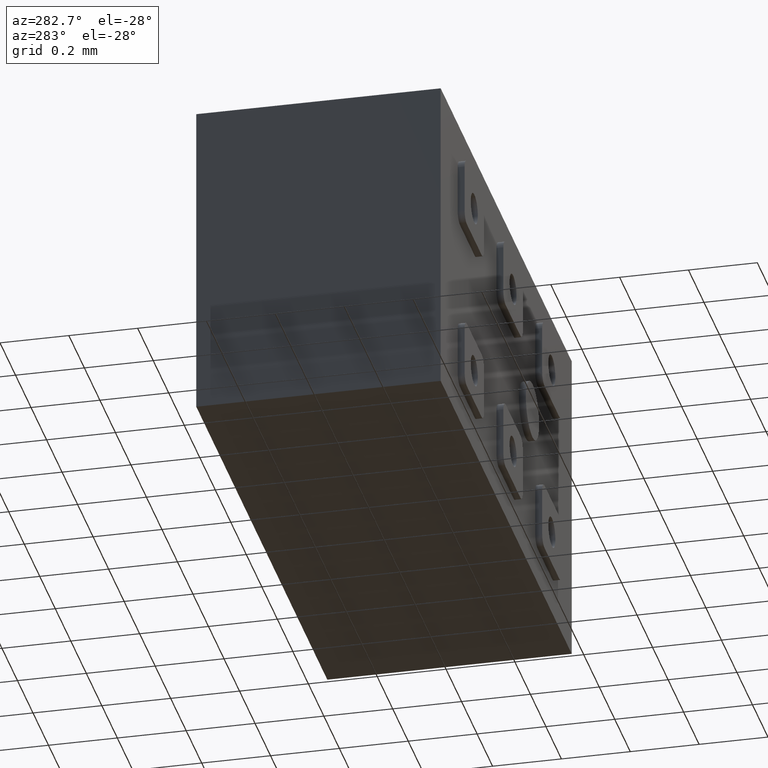
[diagram: clean part render]
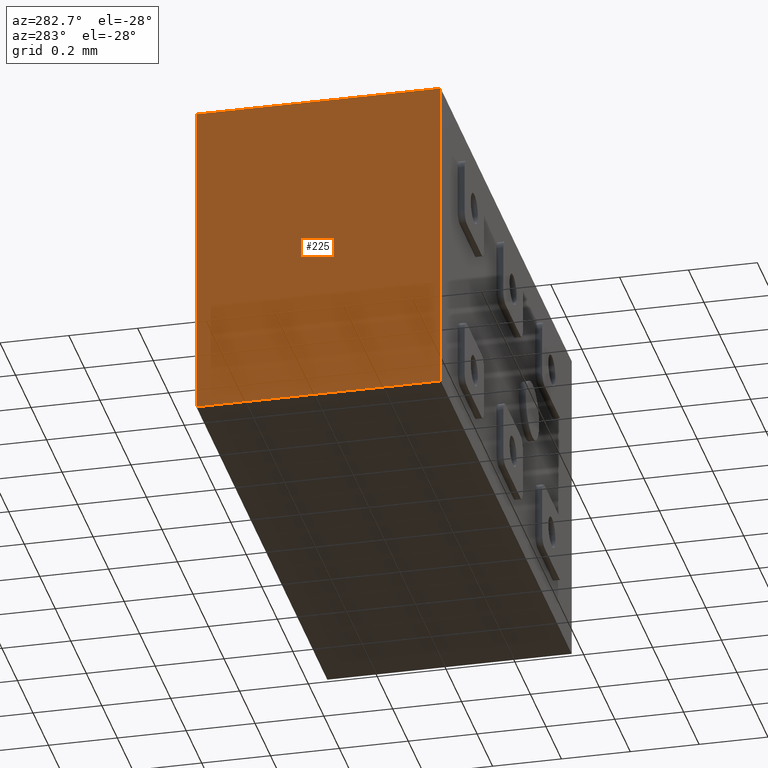
[diagram: same view with one face highlighted and labeled with its STEP entity id]
A machine part, auxiliary view. The second image highlights one B-rep face of the part: STEP entity #225.
In plain terms, the highlighted planar face has unit normal (1, -0, 0).
Its self-contained STEP definition (entity closure, byte-faithful):
#72 = CARTESIAN_POINT ( 'NONE',  ( -0.8445000000000000284, 0.3549999999999999822, -0.4694999999999999174 ) ) ;
#172 = DIRECTION ( 'NONE',  ( -0.000000000000000000, -0.000000000000000000, 1.000000000000000000 ) ) ;
#208 = EDGE_CURVE ( 'NONE', #542, #2104, #2473, .T. ) ;
#225 = ADVANCED_FACE ( 'NONE', ( #280 ), #2462, .F. ) ;
#280 = FACE_OUTER_BOUND ( 'NONE', #1033, .T. ) ;
#310 = VERTEX_POINT ( 'NONE', #1484 ) ;
#511 = ORIENTED_EDGE ( 'NONE', *, *, #911, .F. ) ;
#542 = VERTEX_POINT ( 'NONE', #1954 ) ;
#786 = AXIS2_PLACEMENT_3D ( 'NONE', #2017, #2422, #1874 ) ;
#797 = CARTESIAN_POINT ( 'NONE',  ( -0.8445000000000000284, -0.3549999999999999822, 0.4695000000000000284 ) ) ;
#911 = EDGE_CURVE ( 'NONE', #1313, #310, #1521, .T. ) ;
#954 = ORIENTED_EDGE ( 'NONE', *, *, #208, .T. ) ;
#1017 = ORIENTED_EDGE ( 'NONE', *, *, #2443, .T. ) ;
#1033 = EDGE_LOOP ( 'NONE', ( #954, #1138, #511, #1017 ) ) ;
#1119 = CARTESIAN_POINT ( 'NONE',  ( -0.8445000000000000284, -0.3549999999999999822, 0.4695000000000000284 ) ) ;
#1138 = ORIENTED_EDGE ( 'NONE', *, *, #1838, .F. ) ;
#1189 = CARTESIAN_POINT ( 'NONE',  ( -0.8445000000000000284, 0.3549999999999999822, 0.4695000000000000284 ) ) ;
#1313 = VERTEX_POINT ( 'NONE', #1344 ) ;
#1344 = CARTESIAN_POINT ( 'NONE',  ( -0.8445000000000000284, 0.3549999999999999822, -0.4694999999999999174 ) ) ;
#1432 = VECTOR ( 'NONE', #2559, 1000.000000000000000 ) ;
#1484 = CARTESIAN_POINT ( 'NONE',  ( -0.8445000000000000284, 0.3549999999999999822, 0.4695000000000000284 ) ) ;
#1497 = DIRECTION ( 'NONE',  ( -0.000000000000000000, -0.000000000000000000, 1.000000000000000000 ) ) ;
#1521 = LINE ( 'NONE', #1949, #1910 ) ;
#1645 = LINE ( 'NONE', #72, #2519 ) ;
#1805 = LINE ( 'NONE', #1189, #1432 ) ;
#1838 = EDGE_CURVE ( 'NONE', #310, #2104, #1805, .T. ) ;
#1874 = DIRECTION ( 'NONE',  ( 0.000000000000000000, 0.000000000000000000, -1.000000000000000000 ) ) ;
#1910 = VECTOR ( 'NONE', #172, 1000.000000000000000 ) ;
#1949 = CARTESIAN_POINT ( 'NONE',  ( -0.8445000000000000284, 0.3549999999999999822, 0.4695000000000000284 ) ) ;
#1954 = CARTESIAN_POINT ( 'NONE',  ( -0.8445000000000000284, -0.3549999999999999822, -0.4694999999999999174 ) ) ;
#2017 = CARTESIAN_POINT ( 'NONE',  ( -0.8445000000000000284, 0.3549999999999999822, 0.4695000000000000284 ) ) ;
#2036 = DIRECTION ( 'NONE',  ( -0.000000000000000000, -1.000000000000000000, -0.000000000000000000 ) ) ;
#2104 = VERTEX_POINT ( 'NONE', #797 ) ;
#2422 = DIRECTION ( 'NONE',  ( 1.000000000000000000, -0.000000000000000000, 0.000000000000000000 ) ) ;
#2443 = EDGE_CURVE ( 'NONE', #1313, #542, #1645, .T. ) ;
#2462 = PLANE ( 'NONE',  #786 ) ;
#2473 = LINE ( 'NONE', #1119, #2561 ) ;
#2519 = VECTOR ( 'NONE', #2036, 1000.000000000000000 ) ;
#2559 = DIRECTION ( 'NONE',  ( -0.000000000000000000, -1.000000000000000000, -0.000000000000000000 ) ) ;
#2561 = VECTOR ( 'NONE', #1497, 1000.000000000000000 ) ;